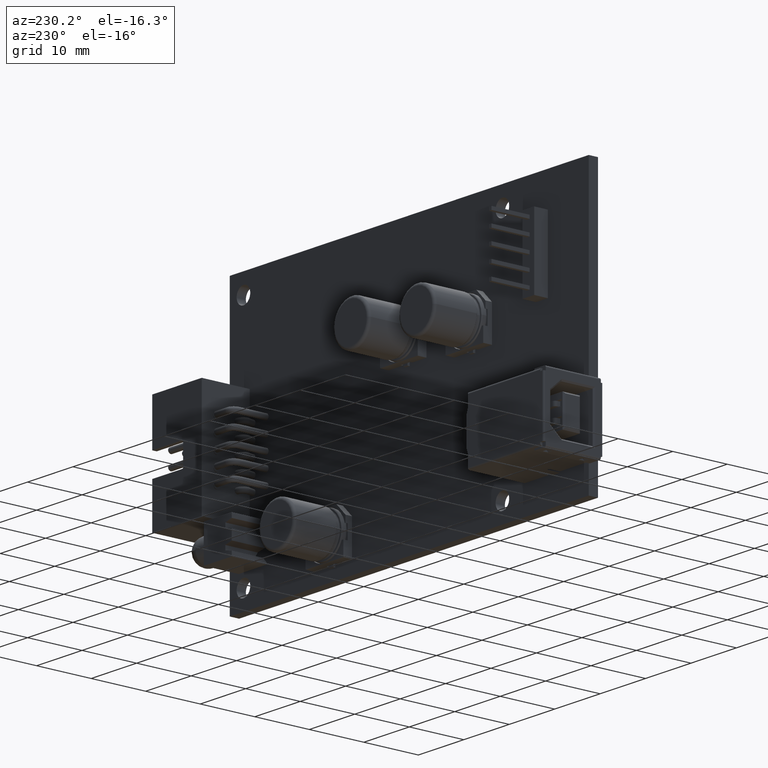
[diagram: clean part render]
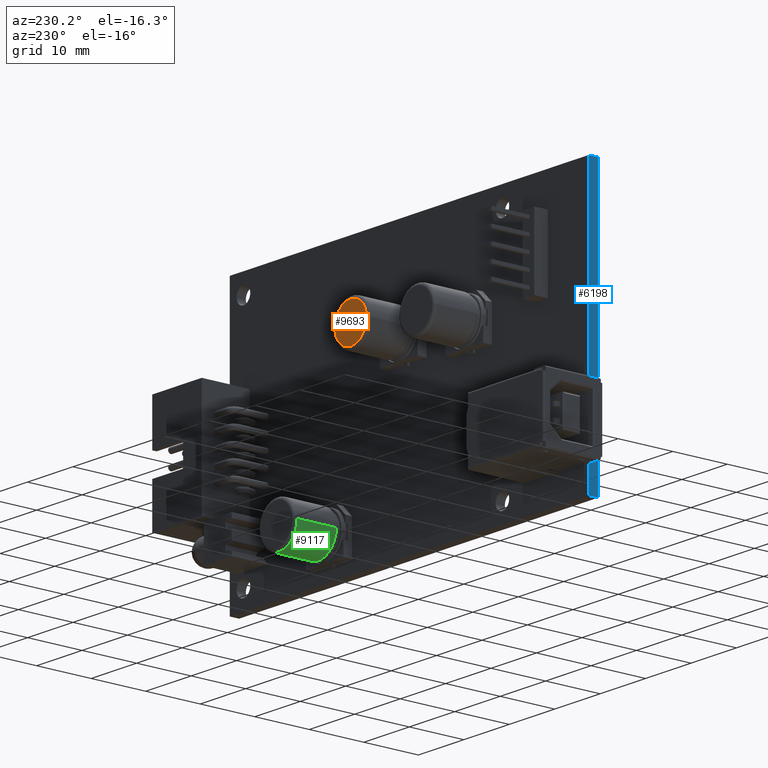
[diagram: same view with three faces highlighted in distinct colors, each labeled with its STEP entity id]
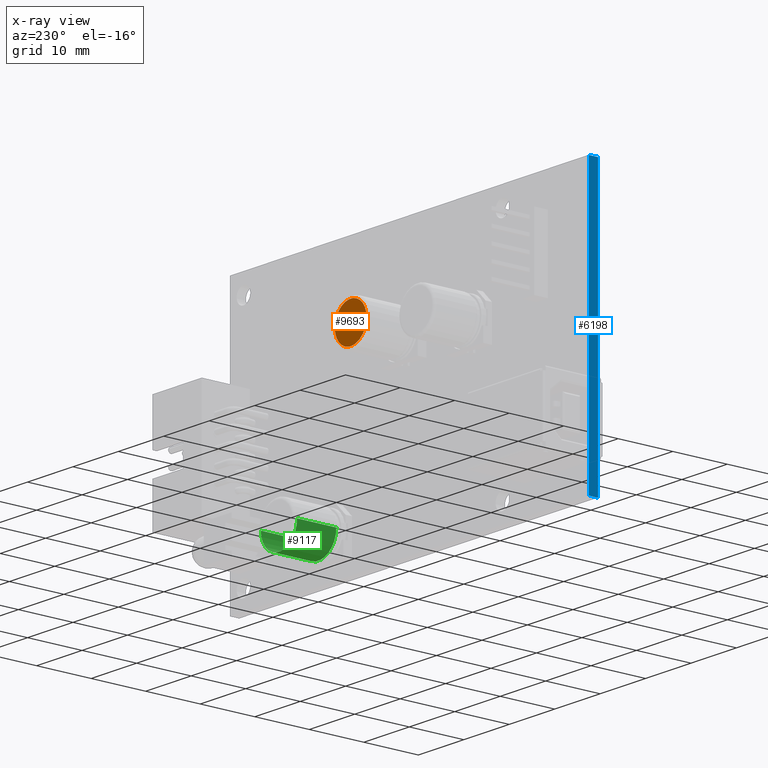
[diagram: x-ray of the same camera — body ghosted, the three highlighted faces saturated]
A machine part, auxiliary view with three faces highlighted in distinct colors.
The next image is the same camera in x-ray (body ghosted, the three faces saturated) — at least one of them is partly hidden behind the body in this view.
Their STEP definitions:

[orange] entity #9693 — the highlighted planar face has unit normal (-0, 1, 0).
#145 = AXIS2_PLACEMENT_3D ( 'NONE', #1365, #5232, #14144 ) ;
#991 = ORIENTED_EDGE ( 'NONE', *, *, #1933, .T. ) ;
#1365 = CARTESIAN_POINT ( 'NONE',  ( -1.483054416564259800, 11.97670093000471400, -17.58849731709261700 ) ) ;
#1933 = EDGE_CURVE ( 'NONE', #9495, #9199, #16318, .T. ) ;
#2918 = EDGE_CURVE ( 'NONE', #9199, #9495, #15894, .T. ) ;
#3559 = DIRECTION ( 'NONE',  ( 1.000000000000000000, 0.0000000000000000000, 0.0000000000000000000 ) ) ;
#3733 = CARTESIAN_POINT ( 'NONE',  ( -1.483054416564259800, 11.97670093000471400, -17.58849731709261700 ) ) ;
#3782 = AXIS2_PLACEMENT_3D ( 'NONE', #3733, #15197, #3559 ) ;
#4777 = PLANE ( 'NONE',  #3782 ) ;
#5232 = DIRECTION ( 'NONE',  ( 0.0000000000000000000, 1.000000000000000000, 0.0000000000000000000 ) ) ;
#5357 = CARTESIAN_POINT ( 'NONE',  ( -4.983054416564260500, 11.97670093000471400, -17.58849731709261700 ) ) ;
#8538 = FACE_OUTER_BOUND ( 'NONE', #8659, .T. ) ;
#8659 = EDGE_LOOP ( 'NONE', ( #991, #16012 ) ) ;
#8796 = AXIS2_PLACEMENT_3D ( 'NONE', #12651, #10223, #10064 ) ;
#9199 = VERTEX_POINT ( 'NONE', #5357 ) ;
#9495 = VERTEX_POINT ( 'NONE', #12597 ) ;
#9693 = ADVANCED_FACE ( 'NONE', ( #8538 ), #4777, .T. ) ;
#10064 = DIRECTION ( 'NONE',  ( 1.000000000000000000, 0.0000000000000000000, 0.0000000000000000000 ) ) ;
#10223 = DIRECTION ( 'NONE',  ( 0.0000000000000000000, 1.000000000000000000, 0.0000000000000000000 ) ) ;
#12597 = CARTESIAN_POINT ( 'NONE',  ( 2.016945583435740400, 11.97670093000471400, -17.58849731709261700 ) ) ;
#12651 = CARTESIAN_POINT ( 'NONE',  ( -1.483054416564259800, 11.97670093000471400, -17.58849731709261700 ) ) ;
#14144 = DIRECTION ( 'NONE',  ( 1.000000000000000000, 0.0000000000000000000, 0.0000000000000000000 ) ) ;
#15197 = DIRECTION ( 'NONE',  ( -0.0000000000000000000, 1.000000000000000000, 0.0000000000000000000 ) ) ;
#15894 = CIRCLE ( 'NONE', #145, 3.500000000000000000 ) ;
#16012 = ORIENTED_EDGE ( 'NONE', *, *, #2918, .T. ) ;
#16318 = CIRCLE ( 'NONE', #8796, 3.500000000000000000 ) ;

[blue] entity #6198 — the highlighted planar face has unit normal (1, -0, 0).
#292 = VERTEX_POINT ( 'NONE', #11549 ) ;
#343 = LINE ( 'NONE', #3616, #13479 ) ;
#665 = EDGE_LOOP ( 'NONE', ( #10233, #7367, #11460, #8485 ) ) ;
#815 = DIRECTION ( 'NONE',  ( 0.0000000000000000000, 0.0000000000000000000, -1.000000000000000000 ) ) ;
#1437 = CARTESIAN_POINT ( 'NONE',  ( -41.33675966715614400, 1.526700930004713200, -1.046038256014014700E-011 ) ) ;
#1601 = EDGE_CURVE ( 'NONE', #13498, #14114, #2994, .T. ) ;
#2040 = CARTESIAN_POINT ( 'NONE',  ( -41.33675966715614400, 1.526700930004713200, -1.046038256014014700E-011 ) ) ;
#2994 = LINE ( 'NONE', #1437, #12180 ) ;
#3103 = AXIS2_PLACEMENT_3D ( 'NONE', #2040, #5871, #815 ) ;
#3616 = CARTESIAN_POINT ( 'NONE',  ( -41.33675966715614400, -0.1732990699952867100, -1.046038256014014700E-011 ) ) ;
#4283 = LINE ( 'NONE', #12552, #12459 ) ;
#4379 = EDGE_CURVE ( 'NONE', #13498, #292, #4283, .T. ) ;
#5665 = VECTOR ( 'NONE', #9900, 1000.000000000000000 ) ;
#5871 = DIRECTION ( 'NONE',  ( 1.000000000000000000, -0.0000000000000000000, 0.0000000000000000000 ) ) ;
#6198 = ADVANCED_FACE ( 'NONE', ( #10850 ), #16064, .F. ) ;
#7367 = ORIENTED_EDGE ( 'NONE', *, *, #11894, .F. ) ;
#8485 = ORIENTED_EDGE ( 'NONE', *, *, #4379, .T. ) ;
#9900 = DIRECTION ( 'NONE',  ( -0.0000000000000000000, -1.000000000000000000, -0.0000000000000000000 ) ) ;
#10233 = ORIENTED_EDGE ( 'NONE', *, *, #14439, .T. ) ;
#10414 = CARTESIAN_POINT ( 'NONE',  ( -41.33675966715614400, -0.1732990699952867100, -1.046038256014014700E-011 ) ) ;
#10850 = FACE_OUTER_BOUND ( 'NONE', #665, .T. ) ;
#11231 = DIRECTION ( 'NONE',  ( -0.0000000000000000000, -1.000000000000000000, -0.0000000000000000000 ) ) ;
#11397 = DIRECTION ( 'NONE',  ( -0.0000000000000000000, -0.0000000000000000000, 1.000000000000000000 ) ) ;
#11460 = ORIENTED_EDGE ( 'NONE', *, *, #1601, .F. ) ;
#11549 = CARTESIAN_POINT ( 'NONE',  ( -41.33675966715614400, -0.1732990699952867100, -50.00000000001046600 ) ) ;
#11704 = DIRECTION ( 'NONE',  ( -0.0000000000000000000, -0.0000000000000000000, 1.000000000000000000 ) ) ;
#11814 = CARTESIAN_POINT ( 'NONE',  ( -41.33675966715614400, 1.526700930004713200, -50.00000000001046600 ) ) ;
#11879 = LINE ( 'NONE', #14977, #5665 ) ;
#11894 = EDGE_CURVE ( 'NONE', #14114, #15120, #11879, .T. ) ;
#12122 = CARTESIAN_POINT ( 'NONE',  ( -41.33675966715614400, 1.526700930004713200, -1.046038256014014700E-011 ) ) ;
#12180 = VECTOR ( 'NONE', #11704, 1000.000000000000000 ) ;
#12459 = VECTOR ( 'NONE', #11231, 1000.000000000000000 ) ;
#12552 = CARTESIAN_POINT ( 'NONE',  ( -41.33675966715614400, 1.526700930004713200, -50.00000000001046600 ) ) ;
#13479 = VECTOR ( 'NONE', #11397, 1000.000000000000000 ) ;
#13498 = VERTEX_POINT ( 'NONE', #11814 ) ;
#14114 = VERTEX_POINT ( 'NONE', #12122 ) ;
#14439 = EDGE_CURVE ( 'NONE', #292, #15120, #343, .T. ) ;
#14977 = CARTESIAN_POINT ( 'NONE',  ( -41.33675966715614400, 1.526700930004713200, -1.046038256014014700E-011 ) ) ;
#15120 = VERTEX_POINT ( 'NONE', #10414 ) ;
#16064 = PLANE ( 'NONE',  #3103 ) ;

[green] entity #9117 — the highlighted cylindrical surface (edge-blend (fillet) strip) has radius 4 mm, axis along (0, -1, 0).
#341 = DIRECTION ( 'NONE',  ( 0.0000000000000000000, 1.000000000000000000, 0.0000000000000000000 ) ) ;
#730 = CARTESIAN_POINT ( 'NONE',  ( 18.90308289303274900, 11.97670093000471400, -43.47544082942976500 ) ) ;
#1889 = CARTESIAN_POINT ( 'NONE',  ( 18.90308289303274900, 11.47670093000471200, -43.47544082942976500 ) ) ;
#1930 = ORIENTED_EDGE ( 'NONE', *, *, #6503, .T. ) ;
#2068 = DIRECTION ( 'NONE',  ( 0.0000000000000000000, -1.000000000000000000, 0.0000000000000000000 ) ) ;
#3051 = CARTESIAN_POINT ( 'NONE',  ( 14.90308289303274900, 4.276700930004712300, -43.47544082942976500 ) ) ;
#3184 = VERTEX_POINT ( 'NONE', #7351 ) ;
#3879 = DIRECTION ( 'NONE',  ( 0.0000000000000000000, -1.000000000000000000, 0.0000000000000000000 ) ) ;
#3889 = EDGE_CURVE ( 'NONE', #12099, #7949, #6299, .T. ) ;
#4811 = VERTEX_POINT ( 'NONE', #1889 ) ;
#5251 = AXIS2_PLACEMENT_3D ( 'NONE', #3051, #341, #14304 ) ;
#5711 = DIRECTION ( 'NONE',  ( 1.000000000000000000, 0.0000000000000000000, 0.0000000000000000000 ) ) ;
#5845 = CARTESIAN_POINT ( 'NONE',  ( 10.90308289303274900, 4.276700930004712300, -43.47544082942976500 ) ) ;
#6299 = LINE ( 'NONE', #12053, #16057 ) ;
#6503 = EDGE_CURVE ( 'NONE', #4811, #3184, #6849, .T. ) ;
#6747 = EDGE_CURVE ( 'NONE', #3184, #7949, #9624, .T. ) ;
#6849 = LINE ( 'NONE', #730, #9461 ) ;
#6858 = EDGE_LOOP ( 'NONE', ( #9017, #1930, #13074, #9341 ) ) ;
#6925 = EDGE_CURVE ( 'NONE', #12099, #4811, #15787, .T. ) ;
#7351 = CARTESIAN_POINT ( 'NONE',  ( 18.90308289303274900, 4.276700930004712300, -43.47544082942976500 ) ) ;
#7726 = DIRECTION ( 'NONE',  ( -1.000000000000000000, 0.0000000000000000000, 0.0000000000000000000 ) ) ;
#7949 = VERTEX_POINT ( 'NONE', #5845 ) ;
#8387 = AXIS2_PLACEMENT_3D ( 'NONE', #14056, #3879, #7726 ) ;
#9017 = ORIENTED_EDGE ( 'NONE', *, *, #6925, .T. ) ;
#9117 = ADVANCED_FACE ( 'NONE', ( #10948 ), #12144, .T. ) ;
#9341 = ORIENTED_EDGE ( 'NONE', *, *, #3889, .F. ) ;
#9461 = VECTOR ( 'NONE', #2068, 1000.000000000000000 ) ;
#9624 = CIRCLE ( 'NONE', #5251, 4.000000000000000000 ) ;
#10948 = FACE_OUTER_BOUND ( 'NONE', #6858, .T. ) ;
#12053 = CARTESIAN_POINT ( 'NONE',  ( 10.90308289303274900, 11.97670093000471400, -43.47544082942976500 ) ) ;
#12099 = VERTEX_POINT ( 'NONE', #13791 ) ;
#12144 = CYLINDRICAL_SURFACE ( 'NONE', #8387, 4.000000000000000000 ) ;
#13074 = ORIENTED_EDGE ( 'NONE', *, *, #6747, .T. ) ;
#13148 = DIRECTION ( 'NONE',  ( 0.0000000000000000000, -1.000000000000000000, 0.0000000000000000000 ) ) ;
#13360 = CARTESIAN_POINT ( 'NONE',  ( 14.90308289303274900, 11.47670093000471200, -43.47544082942976500 ) ) ;
#13791 = CARTESIAN_POINT ( 'NONE',  ( 10.90308289303274900, 11.47670093000471200, -43.47544082942976500 ) ) ;
#13870 = AXIS2_PLACEMENT_3D ( 'NONE', #13360, #16022, #5711 ) ;
#14056 = CARTESIAN_POINT ( 'NONE',  ( 14.90308289303274900, 11.97670093000471400, -43.47544082942976500 ) ) ;
#14304 = DIRECTION ( 'NONE',  ( 1.000000000000000000, 0.0000000000000000000, 0.0000000000000000000 ) ) ;
#15787 = CIRCLE ( 'NONE', #13870, 4.000000000000000000 ) ;
#16022 = DIRECTION ( 'NONE',  ( -0.0000000000000000000, -1.000000000000000000, -0.0000000000000000000 ) ) ;
#16057 = VECTOR ( 'NONE', #13148, 1000.000000000000000 ) ;